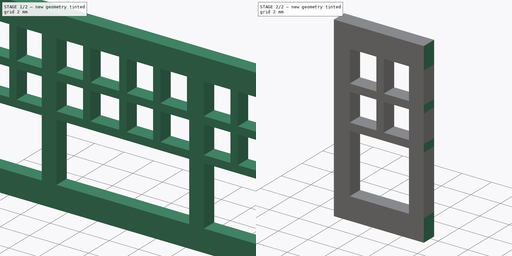
[diagram: build sequence overview — one tinted view per stage of 2, left to right]
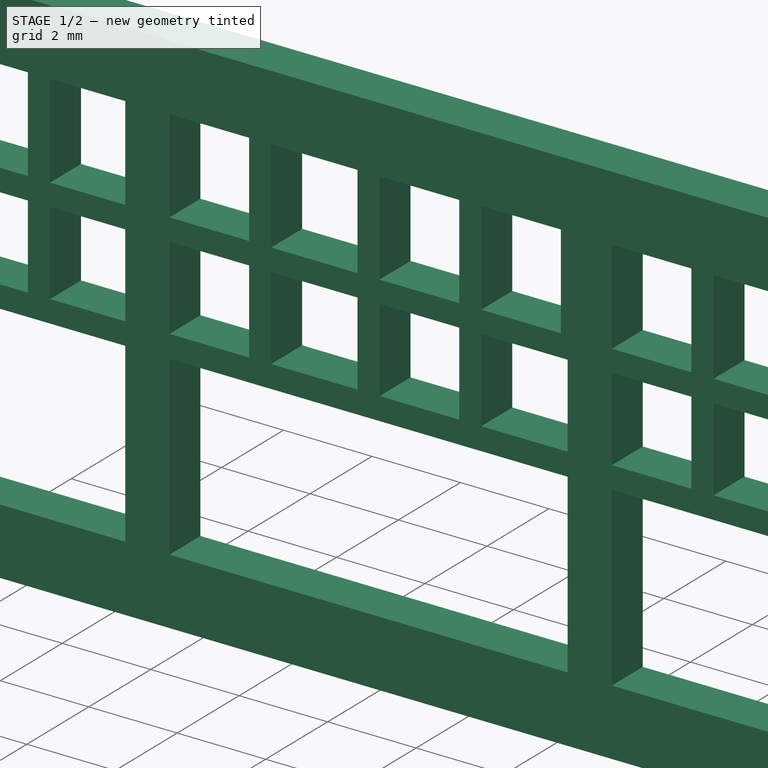
[diagram: stage 1 of 2 — iso view after this stage's code; geometry added in this stage tinted green]
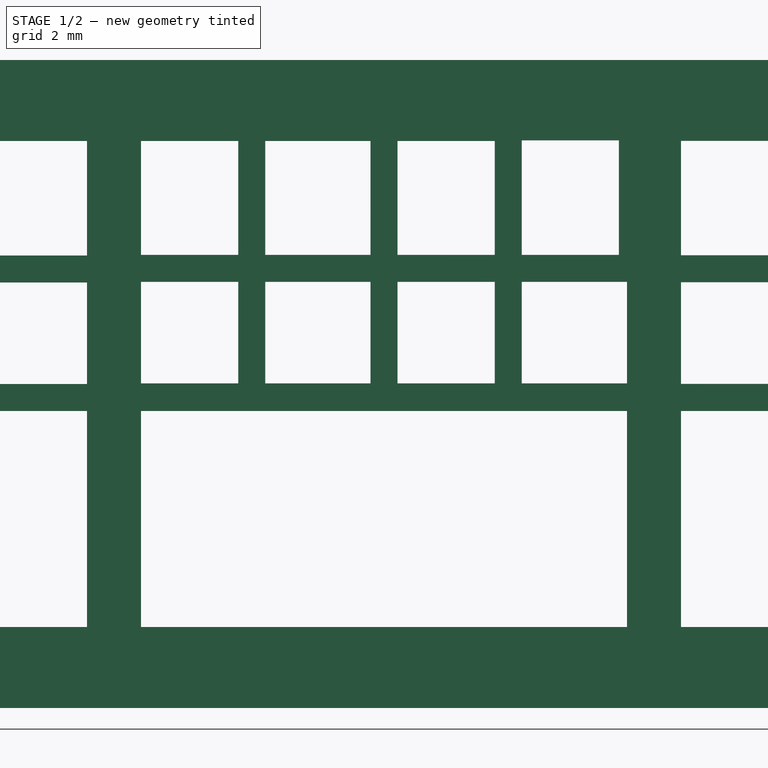
[diagram: stage 1 of 2 — front view after this stage's code; geometry added in this stage tinted green]
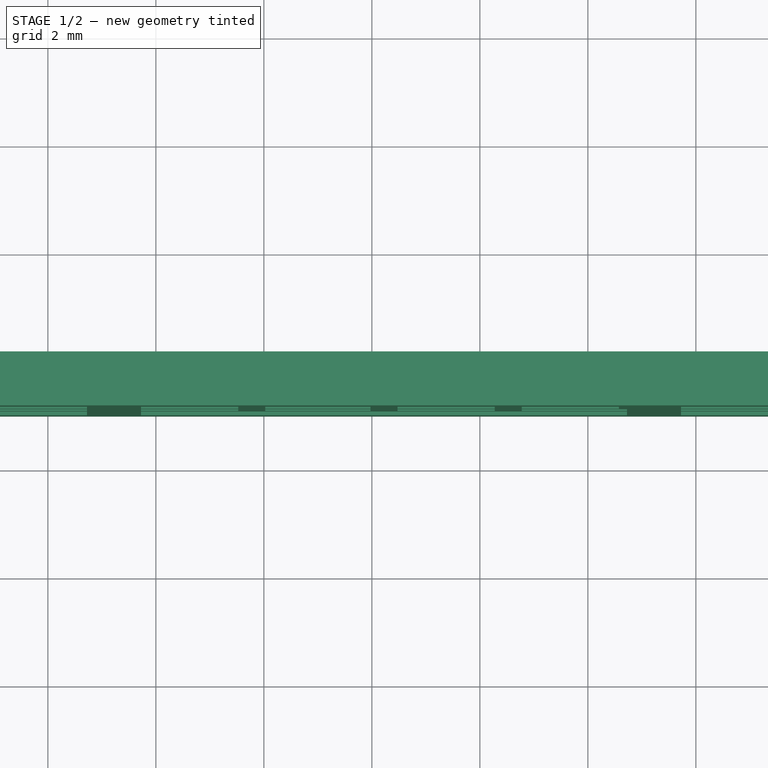
[diagram: stage 1 of 2 — top view after this stage's code; geometry added in this stage tinted green]
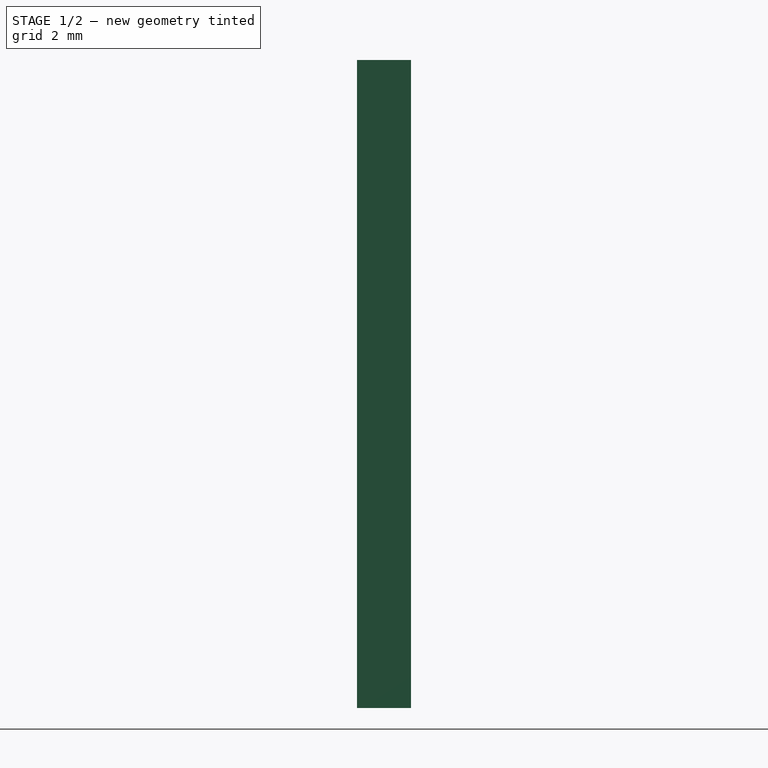
[diagram: stage 1 of 2 — right view after this stage's code; geometry added in this stage tinted green]
FCSTD DOCUMENT  (FreeCAD 0.20R29410 (Git))
Label: third_largest_windows
License: All rights reserved
LicenseURL: http://en.wikipedia.org/wiki/All_rights_reserved
objects: Sketcher::SketchObject×4, PartDesign::Pocket×3, PartDesign::Pad×1, PartDesign::Body×1
note: 13 computed .brp shape members not serialized (recipe doc carries the construction recipe); baked Part::Feature solids carry a one-line shape summary decoded from their .brp

FEATURE [Sketcher::SketchObject] Sketch
  FullyConstrained = false
  MapMode = 5
  Placement = pos=(0,0,0) rot=(1,0,0;1.5708rad)
  Support = -> [XZ_Plane]
  sketch-geometry (4):
    g0: LineSegment StartX=-11.2753 StartY=1.82443 StartZ=0 EndX=11.7247 EndY=1.82443 EndZ=0
    g1: LineSegment StartX=11.7247 StartY=1.82443 StartZ=0 EndX=11.7247 EndY=-10.1756 EndZ=0
    g2: LineSegment StartX=11.7247 StartY=-10.1756 StartZ=0 EndX=-11.2753 EndY=-10.1756 EndZ=0
    g3: LineSegment StartX=-11.2753 StartY=-10.1756 StartZ=0 EndX=-11.2753 EndY=1.82443 EndZ=0
  constraints (10):
    c: Coincident(g0,g1)
    c: Coincident(g1,g2)
    c: Coincident(g2,g3)
    c: Coincident(g3,g0)
    c: Horizontal(g0)
    c: Horizontal(g2)
    c: Vertical(g1)
    c: Vertical(g3)
    c: DistanceX(g0,g0) = 23
    c: DistanceY(g1,g1) = 12
FEATURE [PartDesign::Pad] Pad
  Direction = (0,-1,2e-16)
  Length = 1
  Length2 = 10
  Placement = pos=(0,0,0) rot=(1,0,0;1.5708rad)
  Profile = -> Sketch
  ReferenceAxis = -> Sketch [N_Axis]
  Type = 0
FEATURE [Sketcher::SketchObject] Sketch001
  ExternalGeometry = -> [Pad]
  FullyConstrained = false
  MapMode = 5
  Placement = pos=(0,-1,4e-16) rot=(1,0,0;1.5708rad)
  Support = -> [Pad]
  sketch-geometry (119):
    g0: LineSegment StartX=-9.27533 StartY=-4.67557 StartZ=0 EndX=-5.27533 EndY=-4.67557 EndZ=0
    g1: LineSegment StartX=-5.27533 StartY=-4.67557 StartZ=0 EndX=-5.27533 EndY=-8.67557 EndZ=0
    g2: LineSegment StartX=-5.27533 StartY=-8.67557 StartZ=0 EndX=-9.27533 EndY=-8.67557 EndZ=0
    g3: LineSegment StartX=-9.27533 StartY=-8.67557 StartZ=0 EndX=-9.27533 EndY=-4.67557 EndZ=0
    g4: LineSegment StartX=5.72467 StartY=-4.67557 StartZ=0 EndX=9.72467 EndY=-4.67557 EndZ=0
    g5: LineSegment StartX=9.72467 StartY=-4.67557 StartZ=0 EndX=9.72467 EndY=-8.67557 EndZ=0
    g6: LineSegment StartX=9.72467 StartY=-8.67557 StartZ=0 EndX=5.72467 EndY=-8.67557 EndZ=0
    g7: LineSegment StartX=5.72467 StartY=-8.67557 StartZ=0 EndX=5.72467 EndY=-4.67557 EndZ=0
    g8: LineSegment StartX=-5.27533 StartY=-4.67557 StartZ=0 EndX=5.72467 EndY=-4.67557 EndZ=0
    g9: LineSegment StartX=-4.27533 StartY=-4.67557 StartZ=0 EndX=4.72467 EndY=-4.67557 EndZ=0
    g10: LineSegment StartX=4.72467 StartY=-4.67557 StartZ=0 EndX=4.72467 EndY=-8.67557 EndZ=0
    g11: LineSegment StartX=4.72467 StartY=-8.67557 StartZ=0 EndX=-4.27533 EndY=-8.67557 EndZ=0
    g12: LineSegment StartX=-4.27533 StartY=-8.67557 StartZ=0 EndX=-4.27533 EndY=-4.67557 EndZ=0
    g13: GeomPoint X=0.224666 Y=-10.1756 Z=0
    g14: LineSegment StartX=0.224666 StartY=-10.1756 StartZ=0 EndX=0.224666 EndY=2.57374 EndZ=0
    g15: GeomPoint X=0.224666 Y=-8.67557 Z=0
    g16: LineSegment StartX=-5.27533 StartY=-8.67557 StartZ=0 EndX=-4.27533 EndY=-8.67557 EndZ=0
    g17: LineSegment StartX=-9.27533 StartY=-4.67557 StartZ=0 EndX=-9.27533 EndY=2.45627 EndZ=0
    g18: LineSegment StartX=9.72467 StartY=-4.67557 StartZ=0 EndX=9.72467 EndY=2.74884 EndZ=0
    g19: LineSegment StartX=5.72467 StartY=-4.67557 StartZ=0 EndX=5.72467 EndY=2.3425 EndZ=0
    g20: LineSegment StartX=-4.27533 StartY=-4.67557 StartZ=0 EndX=-4.27533 EndY=2.57005 EndZ=0
    g21: LineSegment StartX=-5.27533 StartY=-4.67557 StartZ=0 EndX=-5.27533 EndY=2.50503 EndZ=0
    g22: LineSegment StartX=-11.2753 StartY=0.324434 StartZ=0 EndX=11.7247 EndY=0.324434 EndZ=0
    g23: LineSegment StartX=-11.2753 StartY=-4.17557 StartZ=0 EndX=11.7247 EndY=-4.17557 EndZ=0
    g24: GeomPoint X=-9.27533 Y=0.324434 Z=0
    g25: GeomPoint X=-5.27533 Y=0.324434 Z=0
    g26: GeomPoint X=-9.27533 Y=-4.17557 Z=0
    g27: GeomPoint X=-5.27533 Y=-4.17557 Z=0
    g28: LineSegment StartX=-9.27533 StartY=0.324434 StartZ=0 EndX=-7.47533 EndY=0.324434 EndZ=0
    g29: LineSegment StartX=-7.47533 StartY=0.324434 StartZ=0 EndX=-7.47533 EndY=-1.7953 EndZ=0
    g30: LineSegment StartX=-7.47533 StartY=-1.7953 StartZ=0 EndX=-9.27533 EndY=-1.7953 EndZ=0
    g31: LineSegment StartX=-9.27533 StartY=-1.7953 StartZ=0 EndX=-9.27533 EndY=0.324434 EndZ=0
    g32: LineSegment StartX=-5.27533 StartY=0.324434 StartZ=0 EndX=-6.97533 EndY=0.324434 EndZ=0
    g33: LineSegment StartX=-6.97533 StartY=0.324434 StartZ=0 EndX=-6.97533 EndY=-1.7953 EndZ=0
    g34: LineSegment StartX=-6.97533 StartY=-1.7953 StartZ=0 EndX=-5.27533 EndY=-1.7953 EndZ=0
    g35: LineSegment StartX=-5.27533 StartY=-1.7953 StartZ=0 EndX=-5.27533 EndY=0.324434 EndZ=0
    g36: LineSegment StartX=-9.27533 StartY=-4.17557 StartZ=0 EndX=-7.47533 EndY=-4.17557 EndZ=0
    g37: LineSegment StartX=-7.47533 StartY=-4.17557 StartZ=0 EndX=-7.47533 EndY=-2.2953 EndZ=0
    g38: LineSegment StartX=-7.47533 StartY=-2.2953 StartZ=0 EndX=-9.27533 EndY=-2.2953 EndZ=0
    g39: LineSegment StartX=-9.27533 StartY=-2.2953 StartZ=0 EndX=-9.27533 EndY=-4.17557 EndZ=0
    g40: LineSegment StartX=-5.27533 StartY=-4.17557 StartZ=0 EndX=-6.97533 EndY=-4.17557 EndZ=0
    g41: LineSegment StartX=-6.97533 StartY=-4.17557 StartZ=0 EndX=-6.97533 EndY=-2.2953 EndZ=0
    g42: LineSegment StartX=-6.97533 StartY=-2.2953 StartZ=0 EndX=-5.27533 EndY=-2.2953 EndZ=0
    g43: LineSegment StartX=-5.27533 StartY=-2.2953 StartZ=0 EndX=-5.27533 EndY=-4.17557 EndZ=0
    g44: LineSegment StartX=-7.47533 StartY=-1.7953 StartZ=0 EndX=-6.97533 EndY=-1.7953 EndZ=0
    g45: LineSegment StartX=-7.47533 StartY=-2.2953 StartZ=0 EndX=-6.97533 EndY=-2.2953 EndZ=0
    g46: GeomPoint X=-4.27533 Y=0.324434 Z=0
    g47: GeomPoint X=-0.0253337 Y=0.324434 Z=0
    g48: GeomPoint X=-4.27533 Y=-4.16478 Z=0
    g49: GeomPoint X=-0.0253337 Y=-4.16478 Z=0
    g50: LineSegment StartX=-4.27533 StartY=0.324434 StartZ=0 EndX=-2.47533 EndY=0.324434 EndZ=0
    g51: LineSegment StartX=-2.47533 StartY=0.324434 StartZ=0 EndX=-2.47533 EndY=-1.78452 EndZ=0
    g52: LineSegment StartX=-2.47533 StartY=-1.78452 StartZ=0 EndX=-4.27533 EndY=-1.78452 EndZ=0
    g53: LineSegment StartX=-4.27533 StartY=-1.78452 StartZ=0 EndX=-4.27533 EndY=0.324434 EndZ=0
    g54: LineSegment StartX=-0.0253337 StartY=0.324434 StartZ=0 EndX=-1.97533 EndY=0.324434 EndZ=0
    g55: LineSegment StartX=-1.97533 StartY=0.324434 StartZ=0 EndX=-1.97533 EndY=-1.78452 EndZ=0
    g56: LineSegment StartX=-1.97533 StartY=-1.78452 StartZ=0 EndX=-0.0253337 EndY=-1.78452 EndZ=0
    g57: LineSegment StartX=-0.0253337 StartY=-1.78452 StartZ=0 EndX=-0.0253337 EndY=0.324434 EndZ=0
    g58: LineSegment StartX=-4.27533 StartY=-4.16478 StartZ=0 EndX=-2.47533 EndY=-4.16478 EndZ=0
    g59: LineSegment StartX=-2.47533 StartY=-4.16478 StartZ=0 EndX=-2.47533 EndY=-2.28452 EndZ=0
    g60: LineSegment StartX=-2.47533 StartY=-2.28452 StartZ=0 EndX=-4.27533 EndY=-2.28452 EndZ=0
    g61: LineSegment StartX=-4.27533 StartY=-2.28452 StartZ=0 EndX=-4.27533 EndY=-4.16478 EndZ=0
    g62: LineSegment StartX=-0.0253337 StartY=-4.16478 StartZ=0 EndX=-1.97533 EndY=-4.16478 EndZ=0
    g63: LineSegment StartX=-1.97533 StartY=-4.16478 StartZ=0 EndX=-1.97533 EndY=-2.28452 EndZ=0
    g64: LineSegment StartX=-1.97533 StartY=-2.28452 StartZ=0 EndX=-0.0253337 EndY=-2.28452 EndZ=0
    g65: LineSegment StartX=-0.0253337 StartY=-2.28452 StartZ=0 EndX=-0.0253337 EndY=-4.16478 EndZ=0
    g66: LineSegment StartX=-2.47533 StartY=-1.78452 StartZ=0 EndX=-1.97533 EndY=-1.78452 EndZ=0
    g67: LineSegment StartX=-2.47533 StartY=-2.28452 StartZ=0 EndX=-1.97533 EndY=-2.28452 EndZ=0
    g68: GeomPoint X=0.474666 Y=0.324434 Z=0
    g69: GeomPoint X=4.57467 Y=0.335215 Z=0
    g70: GeomPoint X=0.474666 Y=-4.16478 Z=0
    g71: GeomPoint X=4.72467 Y=-4.16478 Z=0
    g72: LineSegment StartX=0.474666 StartY=0.324434 StartZ=0 EndX=2.27467 EndY=0.324434 EndZ=0
    g73: LineSegment StartX=2.27467 StartY=0.324434 StartZ=0 EndX=2.27467 EndY=-1.78452 EndZ=0
    g74: LineSegment StartX=2.27467 StartY=-1.78452 StartZ=0 EndX=0.474666 EndY=-1.78452 EndZ=0
    g75: LineSegment StartX=0.474666 StartY=-1.78452 StartZ=0 EndX=0.474666 EndY=0.324434 EndZ=0
    g76: LineSegment StartX=4.57467 StartY=0.335215 StartZ=0 EndX=2.77467 EndY=0.335215 EndZ=0
    g77: LineSegment StartX=2.77467 StartY=0.335215 StartZ=0 EndX=2.77467 EndY=-1.78452 EndZ=0
    g78: LineSegment StartX=2.77467 StartY=-1.78452 StartZ=0 EndX=4.57467 EndY=-1.78452 EndZ=0
    g79: LineSegment StartX=4.57467 StartY=-1.78452 StartZ=0 EndX=4.57467 EndY=0.335215 EndZ=0
    g80: LineSegment StartX=0.474666 StartY=-4.16478 StartZ=0 EndX=2.27467 EndY=-4.16478 EndZ=0
    g81: LineSegment StartX=2.27467 StartY=-4.16478 StartZ=0 EndX=2.27467 EndY=-2.28452 EndZ=0
    g82: LineSegment StartX=2.27467 StartY=-2.28452 StartZ=0 EndX=0.474666 EndY=-2.28452 EndZ=0
    g83: LineSegment StartX=0.474666 StartY=-2.28452 StartZ=0 EndX=0.474666 EndY=-4.16478 EndZ=0
    g84: LineSegment StartX=4.72467 StartY=-4.16478 StartZ=0 EndX=2.77467 EndY=-4.16478 EndZ=0
    g85: LineSegment StartX=2.77467 StartY=-4.16478 StartZ=0 EndX=2.77467 EndY=-2.28452 EndZ=0
    g86: LineSegment StartX=2.77467 StartY=-2.28452 StartZ=0 EndX=4.72467 EndY=-2.28452 EndZ=0
    g87: LineSegment StartX=4.72467 StartY=-2.28452 StartZ=0 EndX=4.72467 EndY=-4.16478 EndZ=0
    g88: LineSegment StartX=2.27467 StartY=-1.78452 StartZ=0 EndX=2.77467 EndY=-1.78452 EndZ=0
    g89: LineSegment StartX=2.27467 StartY=-2.28452 StartZ=0 EndX=2.77467 EndY=-2.28452 EndZ=0
    g90: GeomPoint X=5.72467 Y=0.327645 Z=0
    g91: GeomPoint X=9.72467 Y=0.327645 Z=0
    g92: GeomPoint X=5.72467 Y=-4.17235 Z=0
    g93: GeomPoint X=9.72467 Y=-4.17235 Z=0
    g94: LineSegment StartX=5.72467 StartY=0.327645 StartZ=0 EndX=7.52467 EndY=0.327645 EndZ=0
    g95: LineSegment StartX=7.52467 StartY=0.327645 StartZ=0 EndX=7.52467 EndY=-1.79209 EndZ=0
    g96: LineSegment StartX=7.52467 StartY=-1.79209 StartZ=0 EndX=5.72467 EndY=-1.79209 EndZ=0
    g97: LineSegment StartX=5.72467 StartY=-1.79209 StartZ=0 EndX=5.72467 EndY=0.327645 EndZ=0
    g98: LineSegment StartX=9.72467 StartY=0.327645 StartZ=0 EndX=8.02467 EndY=0.327645 EndZ=0
    g99: LineSegment StartX=8.02467 StartY=0.327645 StartZ=0 EndX=8.02467 EndY=-1.79209 EndZ=0
    g100: LineSegment StartX=8.02467 StartY=-1.79209 StartZ=0 EndX=9.72467 EndY=-1.79209 EndZ=0
    g101: LineSegment StartX=9.72467 StartY=-1.79209 StartZ=0 EndX=9.72467 EndY=0.327645 EndZ=0
    g102: LineSegment StartX=5.72467 StartY=-4.17235 StartZ=0 EndX=7.52467 EndY=-4.17235 EndZ=0
    g103: LineSegment StartX=7.52467 StartY=-4.17235 StartZ=0 EndX=7.52467 EndY=-2.29209 EndZ=0
    g104: LineSegment StartX=7.52467 StartY=-2.29209 StartZ=0 EndX=5.72467 EndY=-2.29209 EndZ=0
    g105: LineSegment StartX=5.72467 StartY=-2.29209 StartZ=0 EndX=5.72467 EndY=-4.17235 EndZ=0
    g106: LineSegment StartX=9.72467 StartY=-4.17235 StartZ=0 EndX=8.02467 EndY=-4.17235 EndZ=0
    g107: LineSegment StartX=8.02467 StartY=-4.17235 StartZ=0 EndX=8.02467 EndY=-2.29209 EndZ=0
    g108: LineSegment StartX=8.02467 StartY=-2.29209 StartZ=0 EndX=9.72467 EndY=-2.29209 EndZ=0
    g109: LineSegment StartX=9.72467 StartY=-2.29209 StartZ=0 EndX=9.72467 EndY=-4.17235 EndZ=0
    g110: LineSegment StartX=7.52467 StartY=-1.79209 StartZ=0 EndX=8.02467 EndY=-1.79209 EndZ=0
    g111: LineSegment StartX=7.52467 StartY=-2.29209 StartZ=0 EndX=8.02467 EndY=-2.29209 EndZ=0
    g112: LineSegment StartX=-6.97533 StartY=-1.7953 StartZ=0 EndX=-6.97533 EndY=-2.2953 EndZ=0
    g113: LineSegment StartX=-2.47533 StartY=-1.78452 StartZ=0 EndX=-2.47533 EndY=-2.28452 EndZ=0
    g114: LineSegment StartX=7.52467 StartY=-1.79209 StartZ=0 EndX=7.52467 EndY=-2.29209 EndZ=0
    g115: GeomPoint X=0.224666 Y=0.324434 Z=0
    g116: LineSegment StartX=-0.0253337 StartY=0.324434 StartZ=0 EndX=0.474666 EndY=0.324434 EndZ=0
    g117: LineSegment StartX=-2.47533 StartY=0.324434 StartZ=0 EndX=-1.97533 EndY=0.324434 EndZ=0
    g118: LineSegment StartX=-5.27533 StartY=0.324434 StartZ=0 EndX=-4.27533 EndY=0.324434 EndZ=0
  constraints (286):
    c: Coincident(g0,g1)
    c: Coincident(g1,g2)
    c: Coincident(g2,g3)
    c: Coincident(g3,g0)
    c: Horizontal(g0)
    c: Horizontal(g2)
    c: Vertical(g1)
    c: Vertical(g3)
    c: Coincident(g4,g5)
    c: Coincident(g5,g6)
    c: Coincident(g6,g7)
    c: Coincident(g7,g4)
    c: Horizontal(g4)
    c: Horizontal(g6)
    c: Vertical(g5)
    c: Vertical(g7)
    c: DistanceY(g1,g1) = 4
    c: Equal(g1,g5)
    c: Coincident(g8,g0)
    c: Coincident(g8,g4)
    c: Horizontal(g8)
    c: DistanceX(g-3,g2) = 2
    c: DistanceX(g5,g-4) = 2
    c: Coincident(g9,g10)
    c: Coincident(g10,g11)
    c: Coincident(g11,g12)
    c: Coincident(g12,g9)
    c: Horizontal(g9)
    c: Horizontal(g11)
    c: Vertical(g10)
    c: Vertical(g12)
    c: PointOnObject(g9,g8)
    c: Symmetric(g-5,g-5,g13)
    c: Coincident(g14,g13)
    c: Vertical(g14)
    c: Symmetric(g11,g11,g15)
    c: PointOnObject(g15,g14)
    c: Coincident(g16,g1)
    c: Coincident(g16,g11)
    c: Horizontal(g16)
    c: DistanceY(g-5,g2) = 1.5
    c: DistanceX(g16,g16) = 1
    c: DistanceX(g2,g2) = 4
    c: Equal(g2,g6)
    c: Coincident(g17,g0)
    c: Vertical(g17)
    c: Coincident(g18,g4)
    c: Vertical(g18)
    c: Coincident(g19,g4)
    c: Vertical(g19)
    c: Coincident(g20,g9)
    c: Vertical(g20)
    c: Coincident(g21,g0)
    c: Vertical(g21)
    c: PointOnObject(g22,g-3)
    c: PointOnObject(g22,g-4)
    c: Horizontal(g22)
    c: DistanceY(g22,g-3) = 1.5
    c: PointOnObject(g23,g-3)
    c: PointOnObject(g23,g-4)
    c: Horizontal(g23)
    c: DistanceY(g0,g23) = 0.5
    c: PointOnObject(g24,g22)
    c: PointOnObject(g24,g17)
    c: PointOnObject(g25,g21)
    c: PointOnObject(g25,g22)
    c: PointOnObject(g26,g23)
    c: PointOnObject(g26,g17)
    c: PointOnObject(g27,g21)
    c: PointOnObject(g27,g23)
    c: Coincident(g28,g29)
    c: Coincident(g29,g30)
    c: Coincident(g30,g31)
    c: Coincident(g31,g28)
    c: Horizontal(g28)
    c: Horizontal(g30)
    c: Vertical(g29)
    c: Vertical(g31)
    c: Coincident(g28,g24)
    c: Coincident(g32,g33)
    c: Coincident(g33,g34)
    c: Coincident(g34,g35)
    c: Coincident(g35,g32)
    c: Horizontal(g32)
    c: Horizontal(g34)
    c: Vertical(g33)
    c: Vertical(g35)
    c: Coincident(g32,g25)
    c: Coincident(g36,g37)
    c: Coincident(g37,g38)
    c: Coincident(g38,g39)
    c: Coincident(g39,g36)
    c: Horizontal(g36)
    c: Horizontal(g38)
    c: Vertical(g37)
    c: Vertical(g39)
    c: Coincident(g36,g26)
    c: Coincident(g40,g41)
    c: Coincident(g41,g42)
    c: Coincident(g42,g43)
    c: Coincident(g43,g40)
    c: Horizontal(g40)
    c: Horizontal(g42)
    c: Vertical(g41)
    c: Vertical(g43)
    c: Coincident(g40,g27)
    c: DistanceX(g28,g32) = 0.5
    c: DistanceY(g38,g30) = 0.5
    c: Coincident(g44,g29)
    c: Coincident(g44,g33)
    c: Coincident(g45,g37)
    c: Coincident(g45,g41)
    c: Horizontal(g45)
    c: Horizontal(g44)
    c: Coincident(g50,g51)
    c: Coincident(g51,g52)
    c: Coincident(g52,g53)
    c: Coincident(g53,g50)
    c: Horizontal(g50)
    c: Horizontal(g52)
    c: Vertical(g51)
    c: Vertical(g53)
    c: Coincident(g50,g46)
    c: Coincident(g54,g55)
    c: Coincident(g55,g56)
    c: Coincident(g56,g57)
    c: Coincident(g57,g54)
    c: Horizontal(g54)
    c: Horizontal(g56)
    c: Vertical(g55)
    c: Vertical(g57)
    c: Coincident(g54,g47)
    c: Coincident(g58,g59)
    c: Coincident(g59,g60)
    c: Coincident(g60,g61)
    c: Coincident(g61,g58)
    c: Horizontal(g58)
    c: Horizontal(g60)
    c: Vertical(g59)
    c: Vertical(g61)
    c: Coincident(g58,g48)
    c: Coincident(g62,g63)
    c: Coincident(g63,g64)
    c: Coincident(g64,g65)
    c: Coincident(g65,g62)
    c: Horizontal(g62)
    c: Horizontal(g64)
    c: Vertical(g63)
    c: Vertical(g65)
    c: Coincident(g62,g49)
    c: DistanceX(g50,g54) = 0.5
    c: DistanceY(g60,g52) = 0.5
    c: Coincident(g66,g51)
    c: Coincident(g66,g55)
    c: Coincident(g67,g59)
    c: Coincident(g67,g63)
    c: Horizontal(g67)
    c: Horizontal(g66)
    c: PointOnObject(g50,g20)
    c: PointOnObject(g60,g20)
    c: Coincident(g72,g73)
    c: Coincident(g73,g74)
    c: Coincident(g74,g75)
    c: Coincident(g75,g72)
    c: Horizontal(g72)
    c: Horizontal(g74)
    c: Vertical(g73)
    c: Vertical(g75)
    c: Coincident(g72,g68)
    c: Coincident(g76,g77)
    c: Coincident(g77,g78)
    c: Coincident(g78,g79)
    c: Coincident(g79,g76)
    c: Horizontal(g76)
    c: Horizontal(g78)
    c: Vertical(g77)
    c: Vertical(g79)
    c: Coincident(g76,g69)
    c: Coincident(g80,g81)
    c: Coincident(g81,g82)
    c: Coincident(g82,g83)
    c: Coincident(g83,g80)
    c: Horizontal(g80)
    c: Horizontal(g82)
    c: Vertical(g81)
    c: Vertical(g83)
    c: Coincident(g80,g70)
    c: Coincident(g84,g85)
    c: Coincident(g85,g86)
    c: Coincident(g86,g87)
    c: Coincident(g87,g84)
    c: Horizontal(g84)
    c: Horizontal(g86)
    c: Vertical(g85)
    c: Vertical(g87)
    c: Coincident(g84,g71)
    c: DistanceX(g72,g76) = 0.5
    c: DistanceY(g82,g74) = 0.5
    c: Coincident(g88,g73)
    c: Coincident(g88,g77)
    c: Coincident(g89,g81)
    c: Coincident(g89,g85)
    c: Horizontal(g89)
    c: Horizontal(g88)
    c: Coincident(g94,g95)
    c: Coincident(g95,g96)
    c: Coincident(g96,g97)
    c: Coincident(g97,g94)
    c: Horizontal(g94)
    c: Horizontal(g96)
    c: Vertical(g95)
    c: Vertical(g97)
    c: Coincident(g94,g90)
    c: Coincident(g98,g99)
    c: Coincident(g99,g100)
    c: Coincident(g100,g101)
    c: Coincident(g101,g98)
    c: Horizontal(g98)
    c: Horizontal(g100)
    c: Vertical(g99)
    c: Vertical(g101)
    c: Coincident(g98,g91)
    c: Coincident(g102,g103)
    c: Coincident(g103,g104)
    c: Coincident(g104,g105)
    c: Coincident(g105,g102)
    c: Horizontal(g102)
    c: Horizontal(g104)
    c: Vertical(g103)
    c: Vertical(g105)
    c: Coincident(g102,g92)
    c: Coincident(g106,g107)
    c: Coincident(g107,g108)
    c: Coincident(g108,g109)
    c: Coincident(g109,g106)
    c: Horizontal(g106)
    c: Horizontal(g108)
    c: Vertical(g107)
    c: Vertical(g109)
    c: Coincident(g106,g93)
    c: DistanceX(g94,g98) = 0.5
    c: DistanceY(g104,g96) = 0.5
    c: Coincident(g110,g95)
    c: Coincident(g110,g99)
    c: Coincident(g111,g103)
    c: Coincident(g111,g107)
    c: Horizontal(g111)
    c: Horizontal(g110)
    c: PointOnObject(g94,g19)
    c: PointOnObject(g98,g18)
    c: PointOnObject(g102,g19)
    c: PointOnObject(g106,g18)
    c: Equal(g38,g60)
    c: Equal(g60,g82)
    c: Equal(g82,g104)
    c: DistanceX(g28,g28) = 1.8
    c: Coincident(g112,g33)
    c: Coincident(g112,g41)
    c: Vertical(g112)
    c: Coincident(g113,g51)
    c: Coincident(g113,g59)
    c: Vertical(g113)
    c: Coincident(g114,g95)
    c: Coincident(g114,g103)
    c: Vertical(g114)
    c: Vertical(g99,g107)
    c: Vertical(g77,g85)
    c: Vertical(g73,g81)
    c: Vertical(g74,g82)
    c: Vertical(g56,g64)
    c: Vertical(g55,g63)
    c: Vertical(g37,g29)
    c: DistanceX(g76,g76) = 1.8
    c: PointOnObject(g115,g14)
    c: Coincident(g116,g54)
    c: Coincident(g116,g72)
    c: Horizontal(g116)
    c: Symmetric(g116,g116,g115)
    c: Coincident(g117,g50)
    c: Coincident(g117,g54)
    c: Horizontal(g117)
    c: Coincident(g118,g32)
    c: Coincident(g118,g50)
    c: Horizontal(g118)
    c: DistanceX(g54,g72) = 0.5
    c: Vertical(g84,g9)
FEATURE [PartDesign::Pocket] Pocket  label="largest window here"
  BaseFeature = -> Pad
  Direction = (0,1,-2e-16)
  Length = 5
  Length2 = 5
  Placement = pos=(0,0,0) rot=(1,0,0;1.5708rad)
  Profile = -> Sketch001
  ReferenceAxis = -> Sketch001 [N_Axis]
  Type = 0
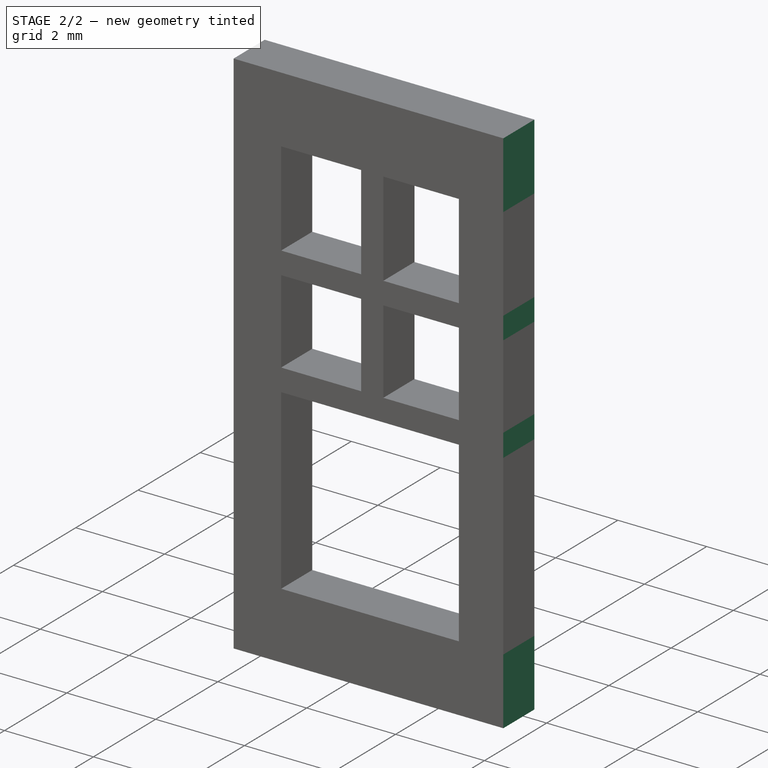
[diagram: stage 2 of 2 — iso view after this stage's code; geometry added in this stage tinted green]
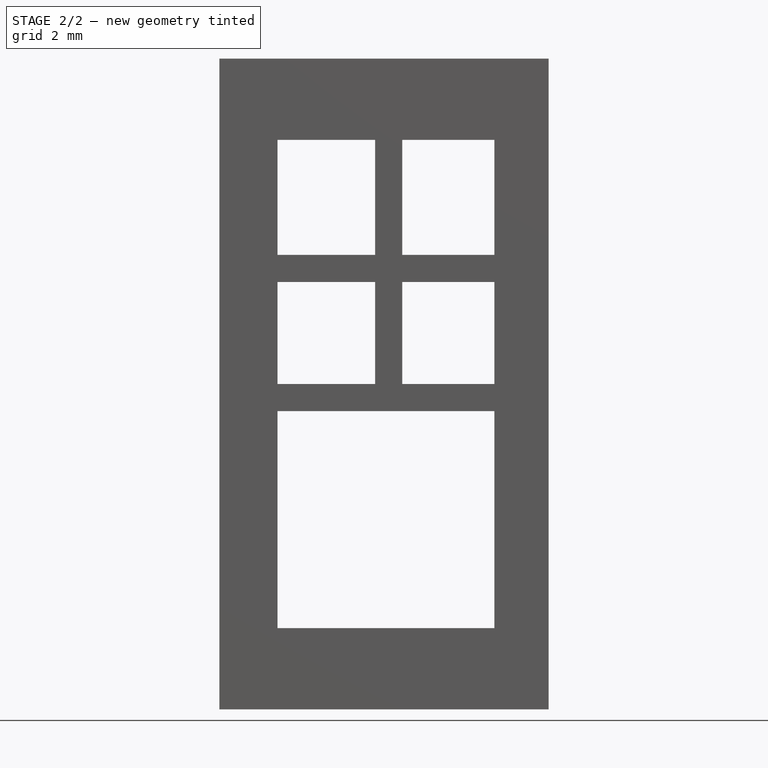
[diagram: stage 2 of 2 — front view after this stage's code; geometry added in this stage tinted green]
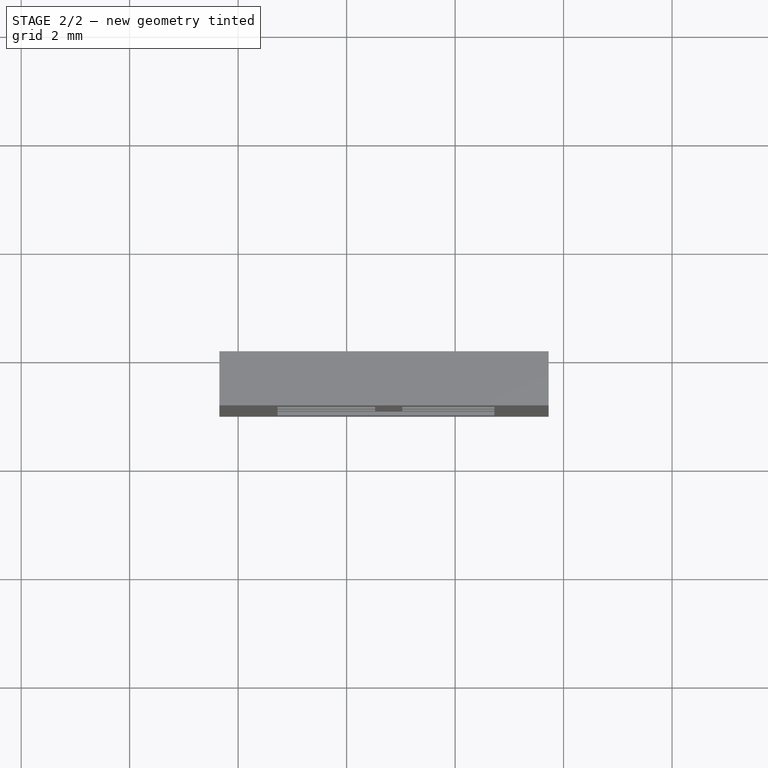
[diagram: stage 2 of 2 — top view after this stage's code; geometry added in this stage tinted green]
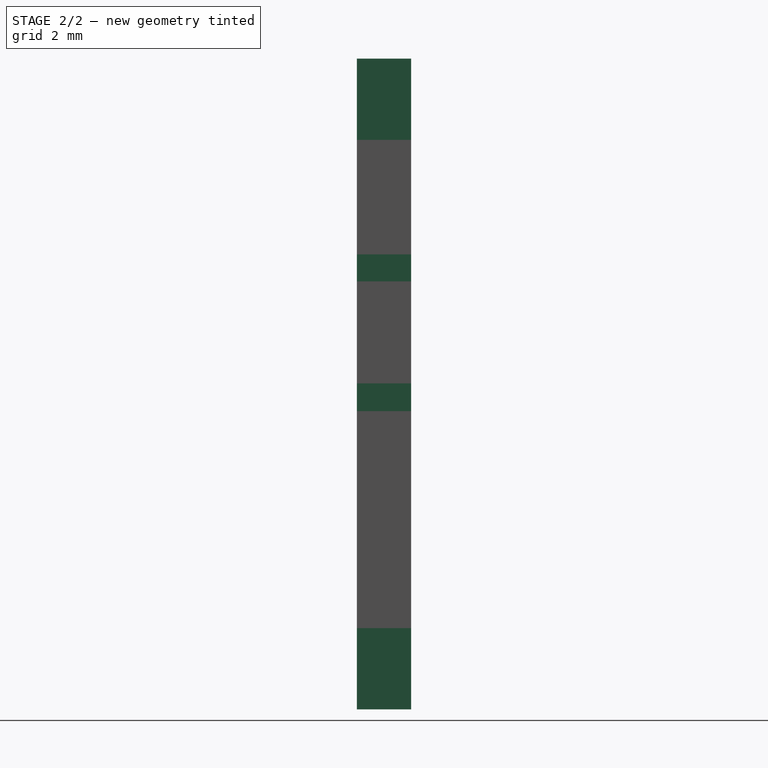
[diagram: stage 2 of 2 — right view after this stage's code; geometry added in this stage tinted green]
FEATURE [Sketcher::SketchObject] Sketch002
  ExternalGeometry = -> [Pocket]
  FullyConstrained = true
  MapMode = 5
  Placement = pos=(0,-1,4e-16) rot=(1,0,0;1.5708rad)
  Support = -> [Pocket]
  sketch-geometry (4):
    g0: LineSegment StartX=11.7247 StartY=-10.1756 StartZ=0 EndX=-4.27533 EndY=-10.1756 EndZ=0
    g1: LineSegment StartX=-4.27533 StartY=-10.1756 StartZ=0 EndX=-4.27533 EndY=1.82443 EndZ=0
    g2: LineSegment StartX=-4.27533 StartY=1.82443 StartZ=0 EndX=11.7247 EndY=1.82443 EndZ=0
    g3: LineSegment StartX=11.7247 StartY=1.82443 StartZ=0 EndX=11.7247 EndY=-10.1756 EndZ=0
  constraints (11):
    c: Coincident(g0,g1)
    c: Coincident(g1,g2)
    c: Coincident(g2,g3)
    c: Coincident(g3,g0)
    c: Horizontal(g0)
    c: Horizontal(g2)
    c: Vertical(g1)
    c: Vertical(g3)
    c: Coincident(g0,g-5)
    c: PointOnObject(g1,g-3)
    c: PointOnObject(g-4,g1)
FEATURE [PartDesign::Pocket] Pocket001
  BaseFeature = -> Pocket
  Direction = (0,1,-4e-16)
  Length = 5
  Length2 = 5
  Placement = pos=(0,0,0) rot=(1,0,0;1.5708rad)
  Profile = -> Sketch002
  ReferenceAxis = -> Sketch002 [N_Axis]
  Type = 0
FEATURE [Sketcher::SketchObject] Sketch003
  ExternalGeometry = -> [Pocket001]
  FullyConstrained = false
  MapMode = 5
  Placement = pos=(0,-1,6e-16) rot=(1,0,0;1.5708rad)
  Support = -> [Pocket001]
  sketch-geometry (6):
    g0: LineSegment StartX=-5.27533 StartY=0.324434 StartZ=0 EndX=-4.20462 EndY=0.324434 EndZ=0
    g1: LineSegment StartX=-9.27533 StartY=0.324434 StartZ=0 EndX=-10.346 EndY=0.324434 EndZ=0
    g2: LineSegment StartX=-11.2753 StartY=1.82443 StartZ=0 EndX=-10.346 EndY=1.82443 EndZ=0
    g3: LineSegment StartX=-10.346 StartY=1.82443 StartZ=0 EndX=-10.346 EndY=-10.1756 EndZ=0
    g4: LineSegment StartX=-10.346 StartY=-10.1756 StartZ=0 EndX=-11.2753 EndY=-10.1756 EndZ=0
    g5: LineSegment StartX=-11.2753 StartY=-10.1756 StartZ=0 EndX=-11.2753 EndY=1.82443 EndZ=0
  constraints (16):
    c: Coincident(g0,g-4)
    c: Horizontal(g0)
    c: Coincident(g1,g-5)
    c: Horizontal(g1)
    c: Equal(g0,g1)
    c: Coincident(g2,g3)
    c: Coincident(g3,g4)
    c: Coincident(g4,g5)
    c: Coincident(g5,g2)
    c: Horizontal(g2)
    c: Horizontal(g4)
    c: Vertical(g3)
    c: Vertical(g5)
    c: Coincident(g2,g-3)
    c: PointOnObject(g3,g-6)
    c: PointOnObject(g1,g3)
FEATURE [PartDesign::Pocket] Pocket002  label="third largest window"
  BaseFeature = -> Pocket001
  Direction = (0,1,-4e-16)
  Length = 5
  Length2 = 5
  Placement = pos=(0,0,0) rot=(1,0,0;1.5708rad)
  Profile = -> Sketch003
  ReferenceAxis = -> Sketch003 [N_Axis]
  Type = 0
FEATURE [PartDesign::Body] Body
  Group = -> [Sketch,Pad,Sketch001,Pocket,Sketch002,Pocket001,Sketch003,Pocket002]
  Origin = -> Origin
  Tip = -> Pocket002
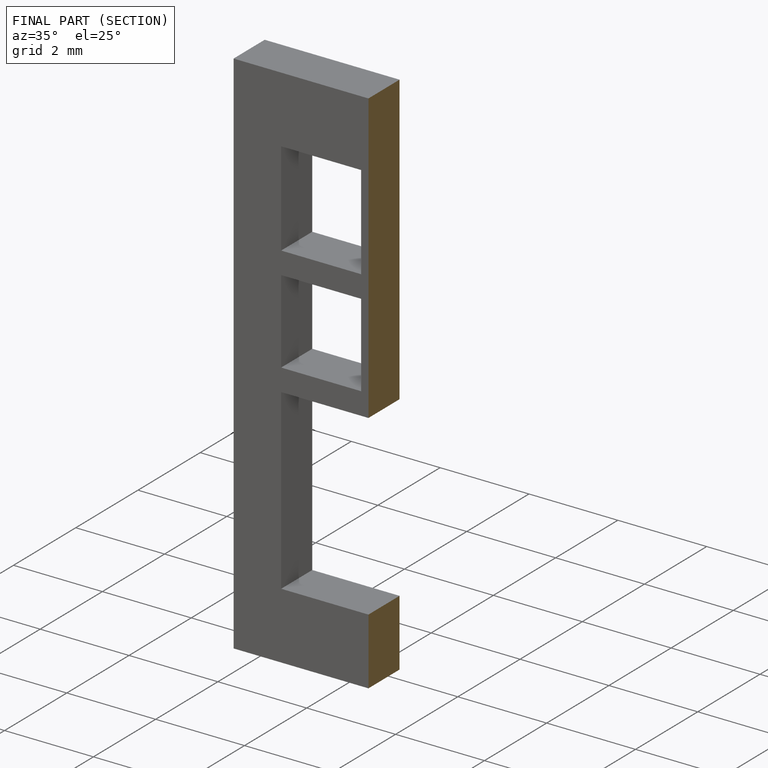
[diagram: finished part — half-section view (interior)]
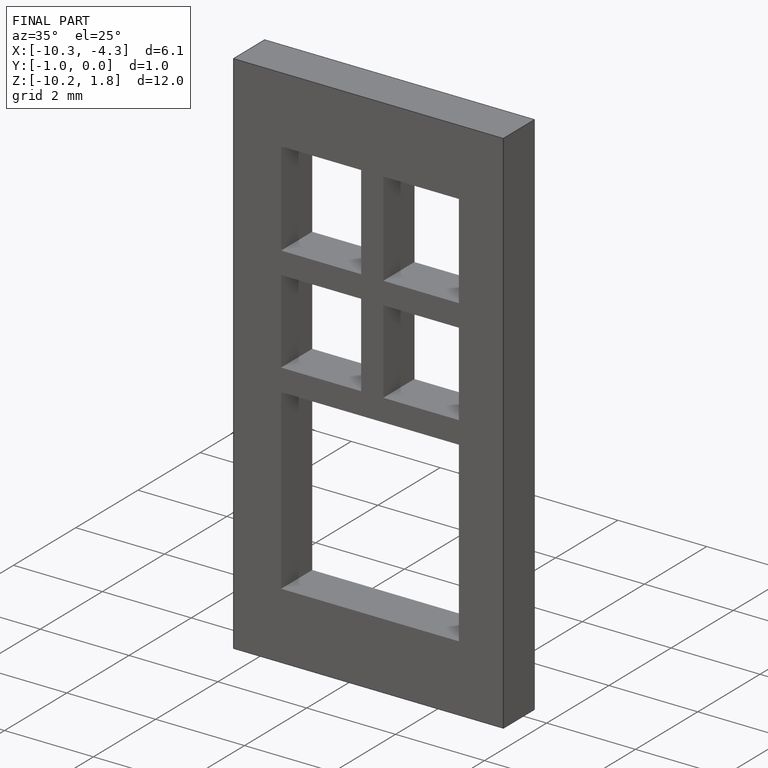
[diagram: finished part — iso view with bounding-box wireframe]
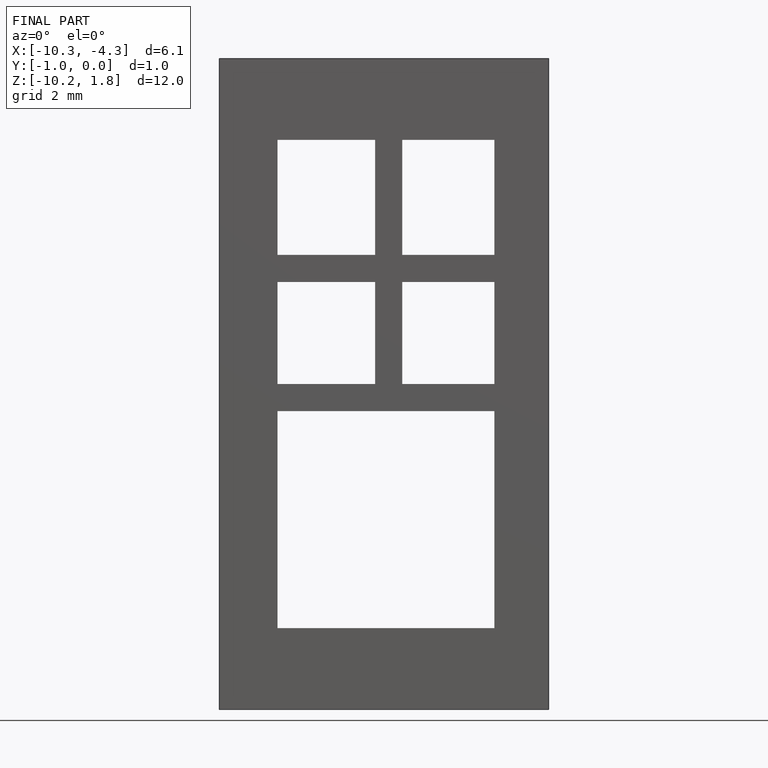
[diagram: finished part — front view with bounding-box wireframe]
